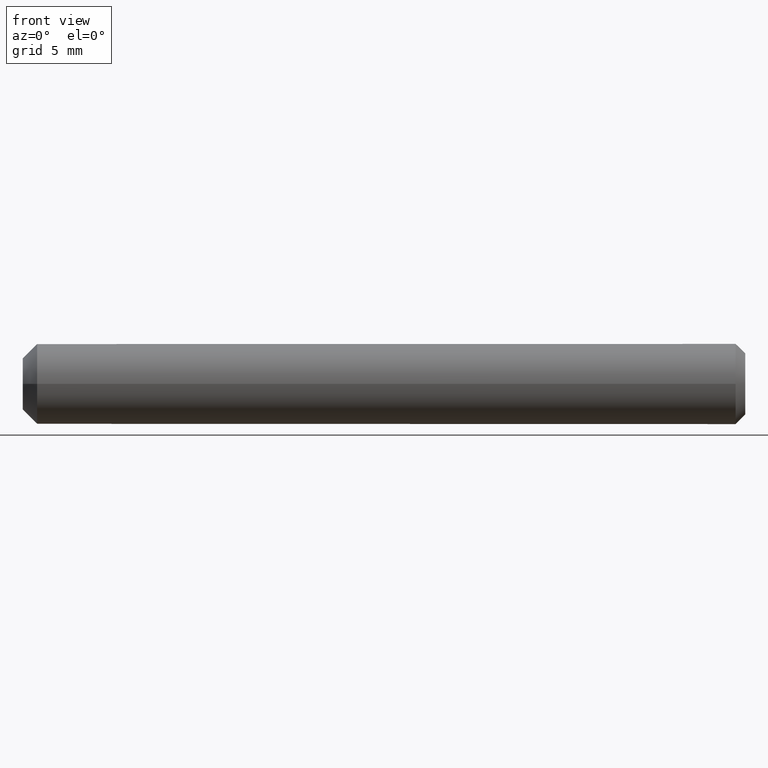
[diagram: clean part render]
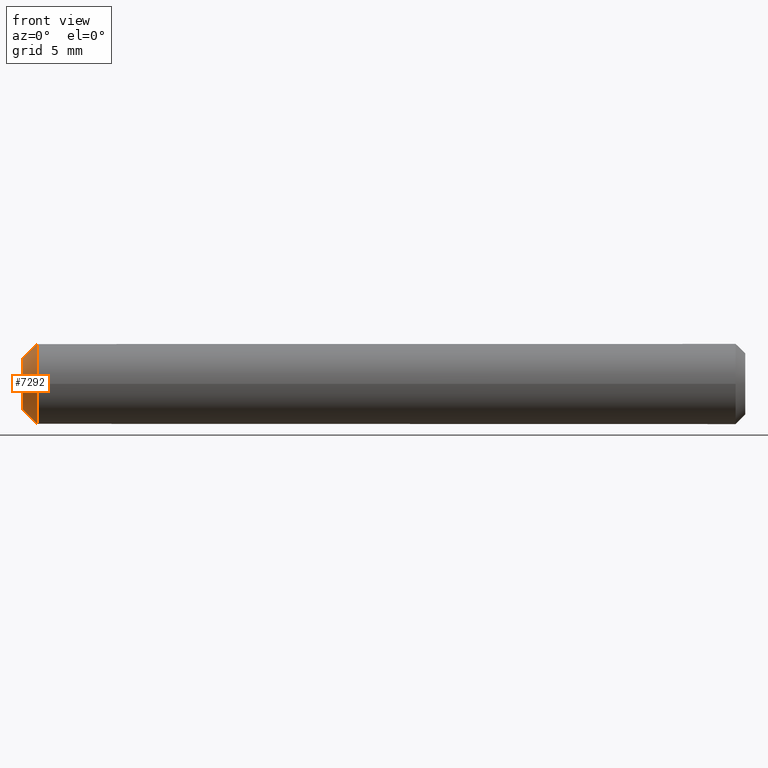
[diagram: same view with one face highlighted and labeled with its STEP entity id]
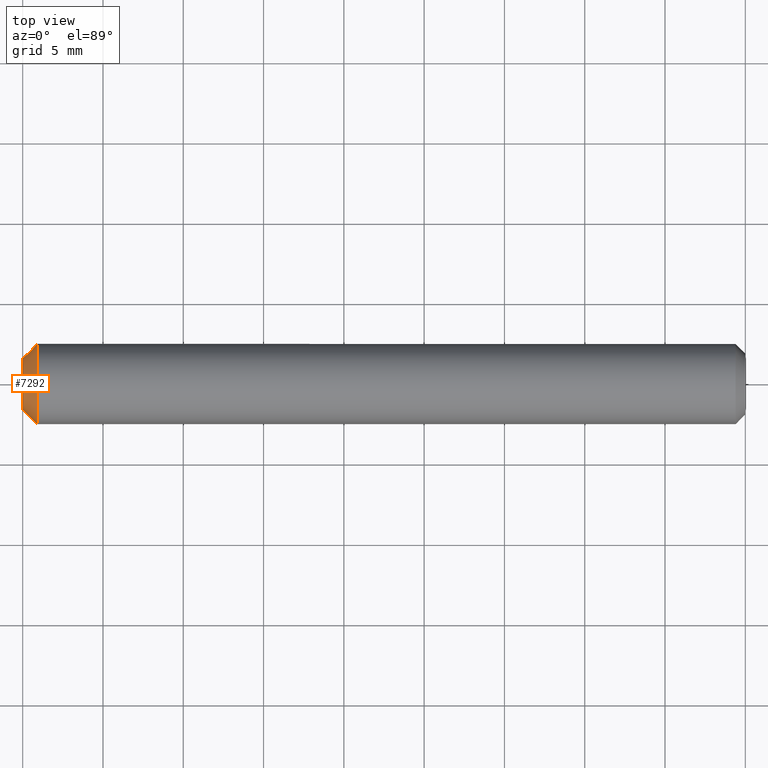
[diagram: same view with one face highlighted and labeled with its STEP entity id]
A machine part, front view. The second image highlights one B-rep face of the part: STEP entity #7292.
A second angle (top view) of the same face is appended — the face is thin or edge-on in the first view.
In plain terms, the highlighted conical surface has half-angle 45 deg.
Its self-contained STEP definition (entity closure, byte-faithful):
#630 = CARTESIAN_POINT ( 'NONE',  ( 2.132221071438559800E-016, -1.075347379388532800E-032, 0.0000000000000000000 ) ) ;
#813 = AXIS2_PLACEMENT_3D ( 'NONE', #18564, #5616, #17266 ) ;
#2454 = FACE_OUTER_BOUND ( 'NONE', #13737, .T. ) ;
#2523 = ORIENTED_EDGE ( 'NONE', *, *, #5099, .F. ) ;
#2679 = AXIS2_PLACEMENT_3D ( 'NONE', #17696, #9076, #14650 ) ;
#2964 = CARTESIAN_POINT ( 'NONE',  ( 0.8999999999999839200, -2.500000000000000000, 0.0000000000000000000 ) ) ;
#4111 = AXIS2_PLACEMENT_3D ( 'NONE', #630, #6323, #12267 ) ;
#4904 = CIRCLE ( 'NONE', #4111, 1.600000000000000100 ) ;
#5099 = EDGE_CURVE ( 'NONE', #18153, #18153, #4904, .T. ) ;
#5407 = ORIENTED_EDGE ( 'NONE', *, *, #16281, .T. ) ;
#5616 = DIRECTION ( 'NONE',  ( -1.000000000000000000, 5.043320290719296800E-017, -0.0000000000000000000 ) ) ;
#6323 = DIRECTION ( 'NONE',  ( -1.000000000000000000, 5.043320290719296800E-017, -0.0000000000000000000 ) ) ;
#7167 = CONICAL_SURFACE ( 'NONE', #2679, 1.600000000000000100, 0.7853981633974572700 ) ;
#7292 = ADVANCED_FACE ( 'NONE', ( #2454, #15732 ), #7167, .T. ) ;
#7791 = VERTEX_POINT ( 'NONE', #2964 ) ;
#8722 = CIRCLE ( 'NONE', #813, 2.500000000000000000 ) ;
#9076 = DIRECTION ( 'NONE',  ( 1.000000000000000000, -5.043320290719296800E-017, 0.0000000000000000000 ) ) ;
#10124 = CARTESIAN_POINT ( 'NONE',  ( 1.325289824923472500E-016, -1.600000000000000100, 0.0000000000000000000 ) ) ;
#12267 = DIRECTION ( 'NONE',  ( -5.043320290719296200E-017, -1.000000000000000000, 0.0000000000000000000 ) ) ;
#13737 = EDGE_LOOP ( 'NONE', ( #5407 ) ) ;
#14650 = DIRECTION ( 'NONE',  ( 5.043320290719296200E-017, 1.000000000000000000, 0.0000000000000000000 ) ) ;
#15732 = FACE_BOUND ( 'NONE', #16930, .T. ) ;
#16281 = EDGE_CURVE ( 'NONE', #7791, #7791, #8722, .T. ) ;
#16930 = EDGE_LOOP ( 'NONE', ( #2523 ) ) ;
#17266 = DIRECTION ( 'NONE',  ( -4.336808689942017700E-017, -1.000000000000000000, 0.0000000000000000000 ) ) ;
#17696 = CARTESIAN_POINT ( 'NONE',  ( 2.132221071438559800E-016, -1.075347379388532800E-032, 0.0000000000000000000 ) ) ;
#18153 = VERTEX_POINT ( 'NONE', #10124 ) ;
#18564 = CARTESIAN_POINT ( 'NONE',  ( 0.8999999999999840300, -4.538988261647287100E-017, 0.0000000000000000000 ) ) ;